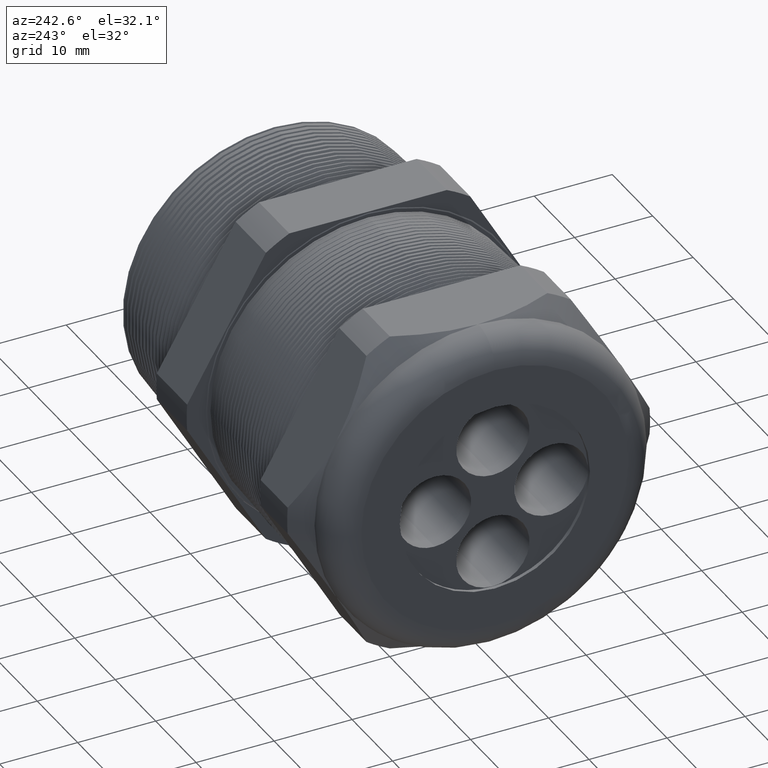
[diagram: clean part render]
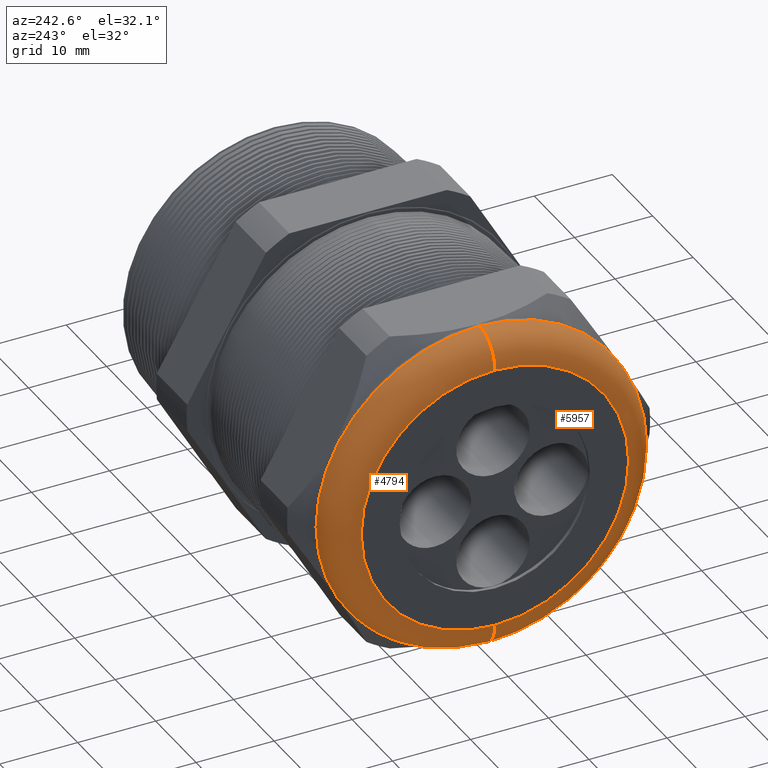
[diagram: same view with one multi-face feature highlighted, each face labeled with its STEP entity id]
A machine part, auxiliary view. The highlighted faces form ONE feature: a constant-radius fillet chain: 2 tangent blend faces with common blend radius 3.81 mm. The faces share edges in the B-rep.
Their STEP definitions:
[1] entity #4794 (Torus):
#379 = CARTESIAN_POINT ( 'NONE',  ( -1.689999999999999900, 1.010333609296566100E-016, 0.8249999999999998400 ) ) ;
#380 = CARTESIAN_POINT ( 'NONE',  ( -1.689999999999999900, 0.0000000000000000000, -0.8249999999999998400 ) ) ;
#381 = DIRECTION ( 'NONE',  ( 0.0000000000000000000, 0.0000000000000000000, 1.000000000000000000 ) ) ;
#382 = DIRECTION ( 'NONE',  ( 1.000000000000000000, 0.0000000000000000000, 0.0000000000000000000 ) ) ;
#383 = CARTESIAN_POINT ( 'NONE',  ( -1.689999999999999900, 0.0000000000000000000, 0.0000000000000000000 ) ) ;
#384 = AXIS2_PLACEMENT_3D ( 'NONE', #383, #382, #381 ) ;
#385 = CIRCLE ( 'NONE', #384, 0.8249999999999998400 ) ;
#386 = DIRECTION ( 'NONE',  ( 0.0000000000000000000, 0.0000000000000000000, 1.000000000000000000 ) ) ;
#387 = DIRECTION ( 'NONE',  ( -1.000000000000000000, 0.0000000000000000000, 0.0000000000000000000 ) ) ;
#388 = AXIS2_PLACEMENT_3D ( 'NONE', #390, #387, #386 ) ;
#389 = TOROIDAL_SURFACE ( 'NONE', #388, 0.6749999999999997100, 0.1499999999999999900 ) ;
#390 = CARTESIAN_POINT ( 'NONE',  ( -1.689999999999999900, 0.0000000000000000000, 0.0000000000000000000 ) ) ;
#391 = FACE_OUTER_BOUND ( 'NONE', #4795, .T. ) ;
#396 = CARTESIAN_POINT ( 'NONE',  ( -1.840000000000000100, 0.0000000000000000000, 0.6749999999999997100 ) ) ;
#397 = DIRECTION ( 'NONE',  ( 0.0000000000000000000, 0.0000000000000000000, 1.000000000000000000 ) ) ;
#398 = DIRECTION ( 'NONE',  ( -1.000000000000000000, 0.0000000000000000000, 0.0000000000000000000 ) ) ;
#399 = CARTESIAN_POINT ( 'NONE',  ( -1.840000000000000100, 0.0000000000000000000, 0.0000000000000000000 ) ) ;
#400 = AXIS2_PLACEMENT_3D ( 'NONE', #399, #398, #397 ) ;
#401 = CIRCLE ( 'NONE', #400, 0.6749999999999997100 ) ;
#402 = CARTESIAN_POINT ( 'NONE',  ( -1.840000000000000100, 9.184850993605146000E-017, -0.6749999999999997100 ) ) ;
#403 = DIRECTION ( 'NONE',  ( 0.0000000000000000000, -1.224646799147353200E-016, 1.000000000000000000 ) ) ;
#404 = DIRECTION ( 'NONE',  ( 0.0000000000000000000, 1.000000000000000000, 1.224646799147353200E-016 ) ) ;
#405 = AXIS2_PLACEMENT_3D ( 'NONE', #412, #404, #403 ) ;
#406 = CIRCLE ( 'NONE', #405, 0.1499999999999999700 ) ;
#412 = CARTESIAN_POINT ( 'NONE',  ( -1.689999999999999900, 8.266365894244631900E-017, -0.6749999999999997100 ) ) ;
#454 = DIRECTION ( 'NONE',  ( 0.0000000000000000000, 0.0000000000000000000, -1.000000000000000000 ) ) ;
#455 = DIRECTION ( 'NONE',  ( 0.0000000000000000000, -1.000000000000000000, 0.0000000000000000000 ) ) ;
#456 = CARTESIAN_POINT ( 'NONE',  ( -1.689999999999999900, 0.0000000000000000000, 0.6749999999999997100 ) ) ;
#457 = AXIS2_PLACEMENT_3D ( 'NONE', #456, #455, #454 ) ;
#458 = CIRCLE ( 'NONE', #457, 0.1499999999999999700 ) ;
#4794 = ADVANCED_FACE ( 'NONE', ( #391 ), #389, .T. ) ;
#4795 = EDGE_LOOP ( 'NONE', ( #4796, #4800, #4823, #4826 ) ) ;
#4796 = ORIENTED_EDGE ( 'NONE', *, *, #4797, .F. ) ;
#4797 = EDGE_CURVE ( 'NONE', #4798, #4799, #385, .T. ) ;
#4798 = VERTEX_POINT ( 'NONE', #380 ) ;
#4799 = VERTEX_POINT ( 'NONE', #379 ) ;
#4800 = ORIENTED_EDGE ( 'NONE', *, *, #4821, .T. ) ;
#4821 = EDGE_CURVE ( 'NONE', #4798, #4822, #406, .T. ) ;
#4822 = VERTEX_POINT ( 'NONE', #402 ) ;
#4823 = ORIENTED_EDGE ( 'NONE', *, *, #4824, .F. ) ;
#4824 = EDGE_CURVE ( 'NONE', #4825, #4822, #401, .T. ) ;
#4825 = VERTEX_POINT ( 'NONE', #396 ) ;
#4826 = ORIENTED_EDGE ( 'NONE', *, *, #4827, .F. ) ;
#4827 = EDGE_CURVE ( 'NONE', #4799, #4825, #458, .T. ) ;
[2] entity #5957 (Torus):
#379 = CARTESIAN_POINT ( 'NONE',  ( -1.689999999999999900, 1.010333609296566100E-016, 0.8249999999999998400 ) ) ;
#380 = CARTESIAN_POINT ( 'NONE',  ( -1.689999999999999900, 0.0000000000000000000, -0.8249999999999998400 ) ) ;
#396 = CARTESIAN_POINT ( 'NONE',  ( -1.840000000000000100, 0.0000000000000000000, 0.6749999999999997100 ) ) ;
#402 = CARTESIAN_POINT ( 'NONE',  ( -1.840000000000000100, 9.184850993605146000E-017, -0.6749999999999997100 ) ) ;
#403 = DIRECTION ( 'NONE',  ( 0.0000000000000000000, -1.224646799147353200E-016, 1.000000000000000000 ) ) ;
#404 = DIRECTION ( 'NONE',  ( 0.0000000000000000000, 1.000000000000000000, 1.224646799147353200E-016 ) ) ;
#405 = AXIS2_PLACEMENT_3D ( 'NONE', #412, #404, #403 ) ;
#406 = CIRCLE ( 'NONE', #405, 0.1499999999999999700 ) ;
#412 = CARTESIAN_POINT ( 'NONE',  ( -1.689999999999999900, 8.266365894244631900E-017, -0.6749999999999997100 ) ) ;
#454 = DIRECTION ( 'NONE',  ( 0.0000000000000000000, 0.0000000000000000000, -1.000000000000000000 ) ) ;
#455 = DIRECTION ( 'NONE',  ( 0.0000000000000000000, -1.000000000000000000, 0.0000000000000000000 ) ) ;
#456 = CARTESIAN_POINT ( 'NONE',  ( -1.689999999999999900, 0.0000000000000000000, 0.6749999999999997100 ) ) ;
#457 = AXIS2_PLACEMENT_3D ( 'NONE', #456, #455, #454 ) ;
#458 = CIRCLE ( 'NONE', #457, 0.1499999999999999700 ) ;
#2308 = CARTESIAN_POINT ( 'NONE',  ( -1.840000000000000100, 0.0000000000000000000, 0.0000000000000000000 ) ) ;
#2309 = AXIS2_PLACEMENT_3D ( 'NONE', #2308, #2368, #2367 ) ;
#2310 = CIRCLE ( 'NONE', #2309, 0.6749999999999997100 ) ;
#2341 = DIRECTION ( 'NONE',  ( 0.0000000000000000000, 0.0000000000000000000, 1.000000000000000000 ) ) ;
#2342 = DIRECTION ( 'NONE',  ( 1.000000000000000000, 0.0000000000000000000, 0.0000000000000000000 ) ) ;
#2343 = CARTESIAN_POINT ( 'NONE',  ( -1.689999999999999900, 0.0000000000000000000, 0.0000000000000000000 ) ) ;
#2344 = AXIS2_PLACEMENT_3D ( 'NONE', #2343, #2342, #2341 ) ;
#2349 = CIRCLE ( 'NONE', #2344, 0.8249999999999998400 ) ;
#2367 = DIRECTION ( 'NONE',  ( 0.0000000000000000000, 0.0000000000000000000, 1.000000000000000000 ) ) ;
#2368 = DIRECTION ( 'NONE',  ( -1.000000000000000000, 0.0000000000000000000, 0.0000000000000000000 ) ) ;
#2543 = DIRECTION ( 'NONE',  ( 0.0000000000000000000, 0.0000000000000000000, 1.000000000000000000 ) ) ;
#2544 = DIRECTION ( 'NONE',  ( -1.000000000000000000, 0.0000000000000000000, 0.0000000000000000000 ) ) ;
#2545 = AXIS2_PLACEMENT_3D ( 'NONE', #2551, #2544, #2543 ) ;
#2546 = TOROIDAL_SURFACE ( 'NONE', #2545, 0.6749999999999997100, 0.1499999999999999900 ) ;
#2547 = FACE_OUTER_BOUND ( 'NONE', #5884, .T. ) ;
#2551 = CARTESIAN_POINT ( 'NONE',  ( -1.689999999999999900, 0.0000000000000000000, 0.0000000000000000000 ) ) ;
#4798 = VERTEX_POINT ( 'NONE', #380 ) ;
#4799 = VERTEX_POINT ( 'NONE', #379 ) ;
#4821 = EDGE_CURVE ( 'NONE', #4798, #4822, #406, .T. ) ;
#4822 = VERTEX_POINT ( 'NONE', #402 ) ;
#4825 = VERTEX_POINT ( 'NONE', #396 ) ;
#4827 = EDGE_CURVE ( 'NONE', #4799, #4825, #458, .T. ) ;
#5791 = EDGE_CURVE ( 'NONE', #4822, #4825, #2310, .T. ) ;
#5804 = EDGE_CURVE ( 'NONE', #4799, #4798, #2349, .T. ) ;
#5884 = EDGE_LOOP ( 'NONE', ( #5885, #5886, #5887, #5888 ) ) ;
#5885 = ORIENTED_EDGE ( 'NONE', *, *, #4821, .F. ) ;
#5886 = ORIENTED_EDGE ( 'NONE', *, *, #5804, .F. ) ;
#5887 = ORIENTED_EDGE ( 'NONE', *, *, #4827, .T. ) ;
#5888 = ORIENTED_EDGE ( 'NONE', *, *, #5791, .F. ) ;
#5957 = ADVANCED_FACE ( 'NONE', ( #2547 ), #2546, .T. ) ;